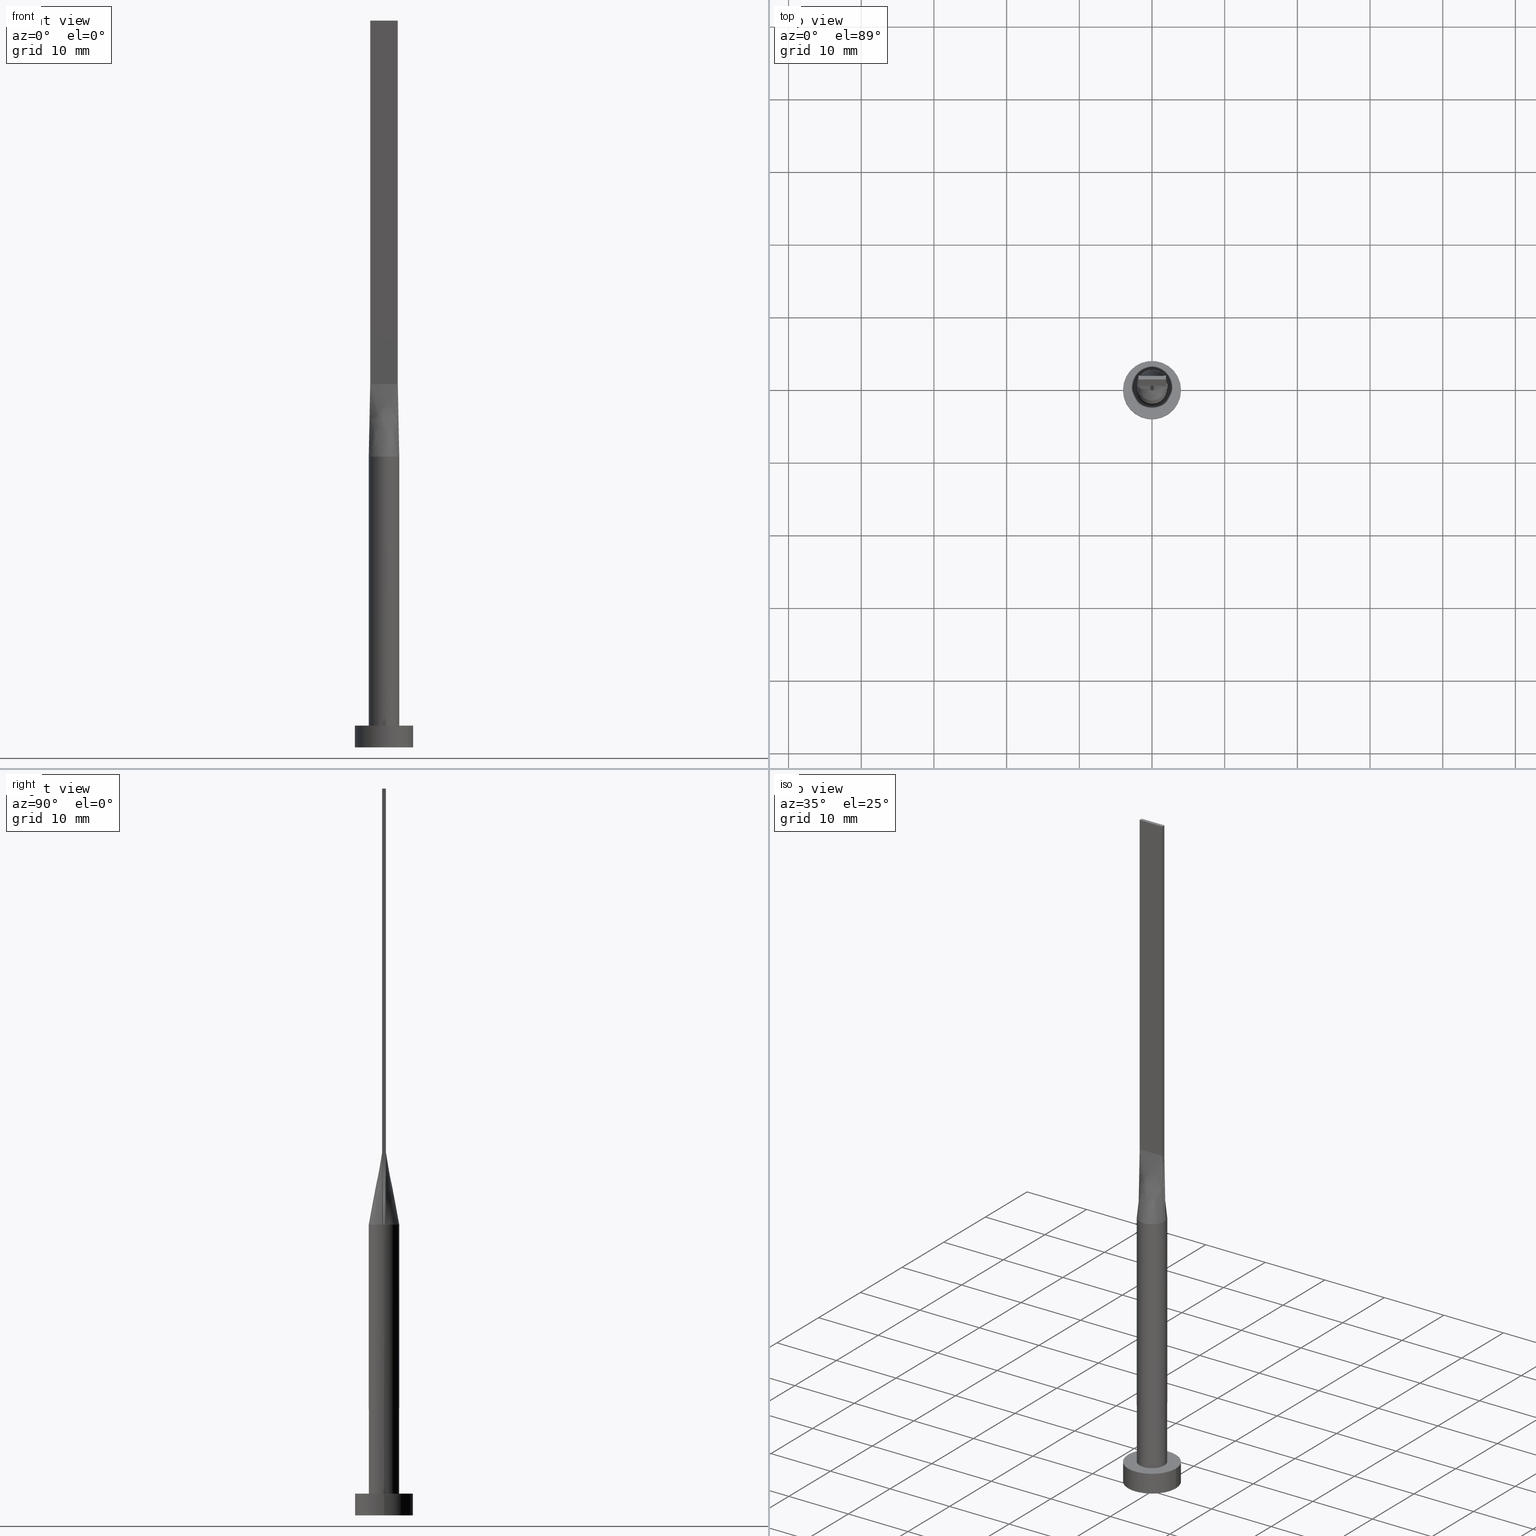
[diagram: canonical four-view strip — front | top / right | iso, engineering-drawing reading convention]
A machine part, canonical four-view strip (front | top / right | iso — engineering-drawing reading convention). The complete STEP part file that produces these views, byte-faithful:
ISO-10303-21;
HEADER;
FILE_DESCRIPTION (( 'STEP AP203' ),
    '1' );
FILE_NAME ('2c65.STEP',
    '2026-02-12T09:05:55',
    ( '' ),
    ( '' ),
    'SwSTEP 2.0',
    'SolidWorks 2019',
    '' );
FILE_SCHEMA (( 'CONFIG_CONTROL_DESIGN' ));
ENDSEC;

DATA;
#1 = VECTOR ( 'NONE', #40, 1000.000000000000000 ) ;
#2 = CIRCLE ( 'NONE', #413, 2.100000000000000089 ) ;
#3 = ORIENTED_EDGE ( 'NONE', *, *, #189, .T. ) ;
#4 = LINE ( 'NONE', #233, #424 ) ;
#5 = DIRECTION ( 'NONE',  ( -0.000000000000000000, -0.000000000000000000, -1.000000000000000000 ) ) ;
#6 = FACE_OUTER_BOUND ( 'NONE', #351, .T. ) ;
#7 = CARTESIAN_POINT ( 'NONE',  ( -1.899999999999999911, 0.2500000000000002220, 50.00000000000000000 ) ) ;
#8 = CARTESIAN_POINT ( 'NONE',  ( -1.843490440271193798, 1.028323931880310349, 39.99999999999999289 ) ) ;
#9 = VECTOR ( 'NONE', #188, 1000.000000000000000 ) ;
#10 = CARTESIAN_POINT ( 'NONE',  ( -1.108333333333334059, 0.2500000000000002220, 50.00000000000000000 ) ) ;
#11 = EDGE_LOOP ( 'NONE', ( #332, #119 ) ) ;
#12 = CARTESIAN_POINT ( 'NONE',  ( -0.3069641454662043190, 2.100000000000000533, 40.00000000000000000 ) ) ;
#13 = CARTESIAN_POINT ( 'NONE',  ( 2.059419575438525385, -0.4459762599261227201, 40.00000000000000711 ) ) ;
#14 = APPLICATION_CONTEXT ( 'configuration controlled 3d designs of mechanical parts and assemblies' ) ;
#15 = EDGE_CURVE ( 'NONE', #566, #476, #85, .T. ) ;
#16 = VERTEX_POINT ( 'NONE', #438 ) ;
#17 = CARTESIAN_POINT ( 'NONE',  ( -1.899999999999999911, 0.2500000000000002220, 100.0000000000000000 ) ) ;
#18 = CARTESIAN_POINT ( 'NONE',  ( 1.583333333333332149, 0.2500000000000002220, 50.00000000000000000 ) ) ;
#19 = VERTEX_POINT ( 'NONE', #36 ) ;
#20 = AXIS2_PLACEMENT_3D ( 'NONE', #557, #29, #160 ) ;
#21 = PLANE ( 'NONE',  #565 ) ;
#22 = DIRECTION ( 'NONE',  ( -1.000000000000000000, 0.000000000000000000, 0.000000000000000000 ) ) ;
#23 = VERTEX_POINT ( 'NONE', #221 ) ;
#24 = ADVANCED_FACE ( 'NONE', ( #365 ), #136, .F. ) ;
#25 = CARTESIAN_POINT ( 'NONE',  ( 0.000000000000000000, 0.000000000000000000, 3.000000000000000000 ) ) ;
#26 = ORIENTED_EDGE ( 'NONE', *, *, #473, .F. ) ;
#27 = PERSON_AND_ORGANIZATION_ROLE ( 'creator' ) ;
#28 = PRODUCT_RELATED_PRODUCT_CATEGORY ( 'detail', '', ( #111 ) ) ;
#29 = DIRECTION ( 'NONE',  ( 0.000000000000000000, 0.000000000000000000, 1.000000000000000000 ) ) ;
#30 = PERSON_AND_ORGANIZATION ( #382, #514 ) ;
#31 = CARTESIAN_POINT ( 'NONE',  ( 1.899999999999999911, 0.2500000000000002220, 100.0000000000000000 ) ) ;
#32 = VERTEX_POINT ( 'NONE', #407 ) ;
#33 = CARTESIAN_POINT ( 'NONE',  ( -0.6126365619873365143, -2.029890967560283865, 39.99999999999998579 ) ) ;
#34 = APPROVAL_ROLE ( '' ) ;
#35 = CARTESIAN_POINT ( 'NONE',  ( 0.000000000000000000, 0.000000000000000000, 3.000000000000000000 ) ) ;
#36 = CARTESIAN_POINT ( 'NONE',  ( 1.899999999999999911, 0.2500000000000002220, 100.0000000000000000 ) ) ;
#37 = APPROVAL_STATUS ( 'not_yet_approved' ) ;
#38 = CARTESIAN_POINT ( 'NONE',  ( -1.899999999999999911, -0.2499999999999995837, 100.0000000000000000 ) ) ;
#39 = VECTOR ( 'NONE', #480, 1000.000000000000000 ) ;
#40 = DIRECTION ( 'NONE',  ( -1.000000000000000000, -0.000000000000000000, -0.000000000000000000 ) ) ;
#41 = ADVANCED_FACE ( 'NONE', ( #6 ), #204, .T. ) ;
#42 = VERTEX_POINT ( 'NONE', #280 ) ;
#43 = CARTESIAN_POINT ( 'NONE',  ( 2.013179673790353341, 0.6348343983169372207, 39.99999999999999289 ) ) ;
#44 = CARTESIAN_POINT ( 'NONE',  ( 1.719140910005029443, -1.233222546295088984, 39.99999999999999289 ) ) ;
#45 = CARTESIAN_POINT ( 'NONE',  ( 1.899999999999999023, -0.2499999999999997780, 100.0000000000000000 ) ) ;
#46 = AXIS2_PLACEMENT_3D ( 'NONE', #542, #522, #22 ) ;
#47 = DIRECTION ( 'NONE',  ( 1.000000000000000000, 0.000000000000000000, -0.000000000000000000 ) ) ;
#48 = EDGE_CURVE ( 'NONE', #213, #293, #372, .T. ) ;
#49 = DIRECTION ( 'NONE',  ( 0.000000000000000000, -0.000000000000000000, -1.000000000000000000 ) ) ;
#50 = FACE_OUTER_BOUND ( 'NONE', #451, .T. ) ;
#51 = PLANE ( 'NONE',  #433 ) ;
#52 = CARTESIAN_POINT ( 'NONE',  ( -1.899999999999999911, -0.2499999999999995837, 50.00000000000000000 ) ) ;
#53 = CARTESIAN_POINT ( 'NONE',  ( -1.144666002056102361, 1.784802689656027619, 40.00000000000000000 ) ) ;
#54 = DIRECTION ( 'NONE',  ( -0.000000000000000000, 0.000000000000000000, -1.000000000000000000 ) ) ;
#55 =( GEOMETRIC_REPRESENTATION_CONTEXT ( 3 ) GLOBAL_UNCERTAINTY_ASSIGNED_CONTEXT ( ( #128 ) ) GLOBAL_UNIT_ASSIGNED_CONTEXT ( ( #559, #474, #561 ) ) REPRESENTATION_CONTEXT ( 'NONE', 'WORKASPACE' ) );
#56 = DIRECTION ( 'NONE',  ( 1.000000000000000000, 0.000000000000000000, 0.000000000000000000 ) ) ;
#57 = CARTESIAN_POINT ( 'NONE',  ( 0.000000000000000000, 0.000000000000000000, 40.00000000000000000 ) ) ;
#58 = VERTEX_POINT ( 'NONE', #513 ) ;
#59 = CARTESIAN_POINT ( 'NONE',  ( 0.000000000000000000, 0.000000000000000000, 3.000000000000000000 ) ) ;
#60 = ADVANCED_BREP_SHAPE_REPRESENTATION ( '2c65', ( #107, #214 ), #55 ) ;
#61 = ORIENTED_EDGE ( 'NONE', *, *, #208, .F. ) ;
#62 = FACE_OUTER_BOUND ( 'NONE', #334, .T. ) ;
#63 = CARTESIAN_POINT ( 'NONE',  ( 1.991027010319670776, -0.2619772381999571076, 45.00000000000000000 ) ) ;
#64 = DIRECTION ( 'NONE',  ( 0.000000000000000000, 0.000000000000000000, 1.000000000000000000 ) ) ;
#65 = ORIENTED_EDGE ( 'NONE', *, *, #239, .F. ) ;
#66 = CYLINDRICAL_SURFACE ( 'NONE', #403, 4.000000000000000000 ) ;
#67 = EDGE_CURVE ( 'NONE', #42, #441, #141, .T. ) ;
#68 = DIRECTION ( 'NONE',  ( 1.000000000000000000, 0.000000000000000000, 0.000000000000000000 ) ) ;
#69 = ORIENTED_EDGE ( 'NONE', *, *, #548, .F. ) ;
#70 = PERSON_AND_ORGANIZATION ( #382, #514 ) ;
#71 = ORIENTED_EDGE ( 'NONE', *, *, #277, .T. ) ;
#72 = ORIENTED_EDGE ( 'NONE', *, *, #239, .T. ) ;
#73 = AXIS2_PLACEMENT_3D ( 'NONE', #357, #225, #397 ) ;
#74 = LOCAL_TIME ( 10, 5, 55.00000000000000000, #487 ) ;
#75 = EDGE_CURVE ( 'NONE', #335, #207, #285, .T. ) ;
#76 = CC_DESIGN_DATE_AND_TIME_ASSIGNMENT ( #256, #389, ( #369 ) ) ;
#77 = CALENDAR_DATE ( 2026, 12, 2 ) ;
#78 = FACE_OUTER_BOUND ( 'NONE', #101, .T. ) ;
#79 = ORIENTED_EDGE ( 'NONE', *, *, #330, .F. ) ;
#80 = CARTESIAN_POINT ( 'NONE',  ( 2.093966886534508909, 0.1834166955966461954, 40.00000000000000000 ) ) ;
#81 = EDGE_CURVE ( 'NONE', #32, #213, #419, .T. ) ;
#82 = EDGE_LOOP ( 'NONE', ( #72, #86, #418, #311, #167 ) ) ;
#83 = LINE ( 'NONE', #453, #114 ) ;
#84 = AXIS2_PLACEMENT_3D ( 'NONE', #363, #316, #540 ) ;
#85 = LINE ( 'NONE', #303, #574 ) ;
#86 = ORIENTED_EDGE ( 'NONE', *, *, #122, .T. ) ;
#87 = CARTESIAN_POINT ( 'NONE',  ( -2.082216547150284924, -0.2739753355370637133, 40.00000000000000000 ) ) ;
#88 = CARTESIAN_POINT ( 'NONE',  ( 1.899999999999999023, -0.2499999999999997780, 100.0000000000000000 ) ) ;
#89 = CARTESIAN_POINT ( 'NONE',  ( 0.000000000000000000, 0.000000000000000000, 0.000000000000000000 ) ) ;
#90 = LINE ( 'NONE', #469, #171 ) ;
#91 = PLANE ( 'NONE',  #504 ) ;
#92 = CARTESIAN_POINT ( 'NONE',  ( -0.6333333333333343029, 0.2500000000000002220, 50.00000000000000000 ) ) ;
#93 = CARTESIAN_POINT ( 'NONE',  ( -2.093966886534509353, 0.1834166955966458346, 40.00000000000000000 ) ) ;
#94 = CYLINDRICAL_SURFACE ( 'NONE', #46, 4.000000000000000000 ) ;
#95 = CARTESIAN_POINT ( 'NONE',  ( -2.082054020639342529, -0.2739544763999126609, 40.00000000000000000 ) ) ;
#96 = CARTESIAN_POINT ( 'NONE',  ( 1.144666002056102583, 1.784802689656027397, 40.00000000000000000 ) ) ;
#97 = CARTESIAN_POINT ( 'NONE',  ( 0.000000000000000000, 0.000000000000000000, 3.000000000000000000 ) ) ;
#98 = CARTESIAN_POINT ( 'NONE',  ( 1.899999999999999023, 0.2500000000000002220, 50.00000000000000000 ) ) ;
#99 = VECTOR ( 'NONE', #404, 1000.000000000000000 ) ;
#100 = CIRCLE ( 'NONE', #240, 2.100000000000000089 ) ;
#101 = EDGE_LOOP ( 'NONE', ( #414, #430, #313, #288 ) ) ;
#102 = CARTESIAN_POINT ( 'NONE',  ( -1.266666666666667274, 0.2500000000000002220, 50.00000000000000000 ) ) ;
#103 = CARTESIAN_POINT ( 'NONE',  ( 2.082054020639342085, -0.2739544763999143262, 40.00000000000000000 ) ) ;
#104 = ORIENTED_EDGE ( 'NONE', *, *, #355, .T. ) ;
#105 = B_SPLINE_SURFACE_WITH_KNOTS ( 'NONE', 3, 1, ( 
 ( #375, #552 ),
 ( #148, #326 ),
 ( #287, #129 ),
 ( #356, #535 ),
 ( #223, #307 ),
 ( #533, #132 ),
 ( #575, #177 ),
 ( #33, #218 ),
 ( #395, #391 ),
 ( #570, #168 ),
 ( #345, #174 ),
 ( #125, #180 ),
 ( #310, #269 ),
 ( #44, #358 ),
 ( #271, #447 ),
 ( #450, #417 ),
 ( #13, #147 ),
 ( #103, #421 ) ),
 .UNSPECIFIED., .F., .F., .F.,
 ( 4, 2, 2, 2, 2, 2, 2, 2, 4 ),
 ( 2, 2 ),
 ( 0.000000000000000000, 0.1249999999999999722, 0.2500000000000000000, 0.3750000000000000000, 0.5000000000000000000, 0.6250000000000001110, 0.7500000000000000000, 0.8750000000000000000, 1.000000000000000000 ),
 ( 0.000000000000000000, 1.000000000000000000 ),
 .UNSPECIFIED. ) ;
#106 = FACE_OUTER_BOUND ( 'NONE', #479, .T. ) ;
#107 = MANIFOLD_SOLID_BREP ( 'P�idat vysunut�m5', #538 ) ;
#108 = ORIENTED_EDGE ( 'NONE', *, *, #122, .F. ) ;
#109 = ORIENTED_EDGE ( 'NONE', *, *, #530, .F. ) ;
#110 = CARTESIAN_POINT ( 'NONE',  ( 2.100000000000000089, 2.571758278209441957E-16, 40.00000000000000000 ) ) ;
#111 = PRODUCT ( '2c65', '2c65', '', ( #166 ) ) ;
#112 = LINE ( 'NONE', #459, #99 ) ;
#113 = ORIENTED_EDGE ( 'NONE', *, *, #562, .F. ) ;
#114 = VECTOR ( 'NONE', #500, 1000.000000000000000 ) ;
#115 = APPROVAL_PERSON_ORGANIZATION ( #30, #200, #34 ) ;
#116 = LINE ( 'NONE', #63, #425 ) ;
#117 = CARTESIAN_POINT ( 'NONE',  ( -1.899999999999999911, -0.2499999999999995837, 100.0000000000000000 ) ) ;
#118 = FACE_OUTER_BOUND ( 'NONE', #11, .T. ) ;
#119 = ORIENTED_EDGE ( 'NONE', *, *, #473, .T. ) ;
#120 = DATE_TIME_ROLE ( 'classification_date' ) ;
#121 = DIRECTION ( 'NONE',  ( 1.000000000000000000, -2.131628207280300558E-14, 0.000000000000000000 ) ) ;
#122 = EDGE_CURVE ( 'NONE', #308, #576, #231, .T. ) ;
#123 = VECTOR ( 'NONE', #502, 1000.000000000000000 ) ;
#124 = LOCAL_TIME ( 10, 5, 55.00000000000000000, #169 ) ;
#125 = CARTESIAN_POINT ( 'NONE',  ( 1.144666002056101028, -1.784802689656028507, 40.00000000000000000 ) ) ;
#126 = COORDINATED_UNIVERSAL_TIME_OFFSET ( 1, 0, .AHEAD. ) ;
#127 = CARTESIAN_POINT ( 'NONE',  ( 2.082200219287980492, 0.2739732417105839035, 40.00000000000000000 ) ) ;
#128 = UNCERTAINTY_MEASURE_WITH_UNIT (LENGTH_MEASURE( 1.000000000000000082E-05 ), #559, 'distance_accuracy_value', 'NONE');
#129 = CARTESIAN_POINT ( 'NONE',  ( -1.583333333333335258, -0.2499999999999995837, 50.00000000000000000 ) ) ;
#130 = EDGE_LOOP ( 'NONE', ( #69, #65, #206, #226, #3, #563 ) ) ;
#131 = CARTESIAN_POINT ( 'NONE',  ( 4.000000000000000000, 4.898587196589412829E-16, 0.000000000000000000 ) ) ;
#132 = CARTESIAN_POINT ( 'NONE',  ( -0.7916666666666716257, -0.2499999999999995837, 50.00000000000000000 ) ) ;
#133 = CC_DESIGN_PERSON_AND_ORGANIZATION_ASSIGNMENT ( #429, #392, ( #224 ) ) ;
#134 = CARTESIAN_POINT ( 'NONE',  ( 1.899999999999999911, 0.2500000000000002220, 100.0000000000000000 ) ) ;
#135 = LINE ( 'NONE', #229, #238 ) ;
#136 = PLANE ( 'NONE',  #205 ) ;
#137 = ORIENTED_EDGE ( 'NONE', *, *, #81, .T. ) ;
#138 = DIRECTION ( 'NONE',  ( -1.000000000000000000, 1.734723475976807094E-15, 0.000000000000000000 ) ) ;
#139 = EDGE_CURVE ( 'NONE', #476, #467, #400, .T. ) ;
#140 = CARTESIAN_POINT ( 'NONE',  ( 1.719140910005030110, 1.233222546295088762, 39.99999999999999289 ) ) ;
#141 = CIRCLE ( 'NONE', #360, 4.000000000000000000 ) ;
#142 = CARTESIAN_POINT ( 'NONE',  ( -2.099923319482092765, -0.09170834779832252870, 40.00000000000000000 ) ) ;
#143 = CARTESIAN_POINT ( 'NONE',  ( -2.059419575438525385, 0.4459762599261216653, 40.00000000000000711 ) ) ;
#144 = ADVANCED_FACE ( 'NONE', ( #580 ), #183, .T. ) ;
#145 = CARTESIAN_POINT ( 'NONE',  ( 2.082216499796571085, -0.2739752411676472654, 40.00000000000000000 ) ) ;
#146 = CARTESIAN_POINT ( 'NONE',  ( -1.899999999999999911, 0.2500000000000002220, 50.00000000000000000 ) ) ;
#147 = CARTESIAN_POINT ( 'NONE',  ( 1.741666666666664698, -0.2499999999999997780, 50.00000000000000000 ) ) ;
#148 = CARTESIAN_POINT ( 'NONE',  ( -2.059419575438525385, -0.4459762599261209992, 40.00000000000000000 ) ) ;
#149 = CC_DESIGN_PERSON_AND_ORGANIZATION_ASSIGNMENT ( #162, #432, ( #224 ) ) ;
#150 = CARTESIAN_POINT ( 'NONE',  ( -2.013179673790353341, 0.6348343983169374427, 39.99999999999998579 ) ) ;
#151 = AXIS2_PLACEMENT_3D ( 'NONE', #537, #577, #179 ) ;
#152 = SECURITY_CLASSIFICATION ( '', '', #571 ) ;
#153 = EDGE_LOOP ( 'NONE', ( #104, #263, #579, #427 ) ) ;
#154 = CARTESIAN_POINT ( 'NONE',  ( 0.6126365619873356261, 2.029890967560284754, 40.00000000000000000 ) ) ;
#155 = ORIENTED_EDGE ( 'NONE', *, *, #48, .F. ) ;
#156 = EDGE_CURVE ( 'NONE', #576, #23, #4, .T. ) ;
#157 = ORIENTED_EDGE ( 'NONE', *, *, #189, .F. ) ;
#158 = DIRECTION ( 'NONE',  ( -0.000000000000000000, -0.000000000000000000, -1.000000000000000000 ) ) ;
#159 = PERSON_AND_ORGANIZATION_ROLE ( 'classification_officer' ) ;
#160 = DIRECTION ( 'NONE',  ( 1.000000000000000000, 0.000000000000000000, 0.000000000000000000 ) ) ;
#161 = VECTOR ( 'NONE', #437, 1000.000000000000000 ) ;
#162 = PERSON_AND_ORGANIZATION ( #382, #514 ) ;
#163 = CARTESIAN_POINT ( 'NONE',  ( 0.000000000000000000, 0.000000000000000000, 40.00000000000000000 ) ) ;
#164 = ORIENTED_EDGE ( 'NONE', *, *, #75, .T. ) ;
#165 = EDGE_CURVE ( 'NONE', #213, #467, #191, .T. ) ;
#166 = MECHANICAL_CONTEXT ( 'NONE', #14, 'mechanical' ) ;
#167 = ORIENTED_EDGE ( 'NONE', *, *, #555, .F. ) ;
#168 = CARTESIAN_POINT ( 'NONE',  ( 0.1583333333333272475, -0.2499999999999996669, 50.00000000000000000 ) ) ;
#169 = COORDINATED_UNIVERSAL_TIME_OFFSET ( 1, 0, .AHEAD. ) ;
#170 = DIRECTION ( 'NONE',  ( -1.000000000000000000, 0.000000000000000000, 0.000000000000000000 ) ) ;
#171 = VECTOR ( 'NONE', #549, 1000.000000000000114 ) ;
#172 = ORIENTED_EDGE ( 'NONE', *, *, #139, .T. ) ;
#173 = APPROVAL_PERSON_ORGANIZATION ( #436, #385, #299 ) ;
#174 = CARTESIAN_POINT ( 'NONE',  ( 0.3166666666666607677, -0.2499999999999996669, 50.00000000000000000 ) ) ;
#175 = CALENDAR_DATE ( 2026, 12, 2 ) ;
#176 = ADVANCED_FACE ( 'NONE', ( #186 ), #94, .T. ) ;
#177 = CARTESIAN_POINT ( 'NONE',  ( -0.6333333333333387438, -0.2499999999999995837, 50.00000000000000000 ) ) ;
#178 = ORIENTED_EDGE ( 'NONE', *, *, #81, .F. ) ;
#179 = DIRECTION ( 'NONE',  ( 1.000000000000000000, 0.000000000000000000, 0.000000000000000000 ) ) ;
#180 = CARTESIAN_POINT ( 'NONE',  ( 0.6333333333333278636, -0.2499999999999996669, 50.00000000000000000 ) ) ;
#181 = PLANE ( 'NONE',  #348 ) ;
#182 = ORIENTED_EDGE ( 'NONE', *, *, #15, .T. ) ;
#183 = CYLINDRICAL_SURFACE ( 'NONE', #84, 2.100000000000000089 ) ;
#184 = VECTOR ( 'NONE', #261, 1000.000000000000000 ) ;
#185 = CARTESIAN_POINT ( 'NONE',  ( 2.093966886534508909, -0.1834166955966466950, 40.00000000000000000 ) ) ;
#186 = FACE_OUTER_BOUND ( 'NONE', #493, .T. ) ;
#187 = EDGE_CURVE ( 'NONE', #441, #440, #112, .T. ) ;
#188 = DIRECTION ( 'NONE',  ( 0.000000000000000000, -1.000000000000000000, 0.000000000000000000 ) ) ;
#189 = EDGE_CURVE ( 'NONE', #16, #380, #323, .T. ) ;
#190 = CARTESIAN_POINT ( 'NONE',  ( 2.082054020639342085, -0.2739544763999143262, 40.00000000000000000 ) ) ;
#191 = LINE ( 'NONE', #367, #275 ) ;
#192 = PLANE ( 'NONE',  #319 ) ;
#193 = CARTESIAN_POINT ( 'NONE',  ( -2.099923319482092765, 0.09170834779832304218, 40.00000000000000000 ) ) ;
#194 = CARTESIAN_POINT ( 'NONE',  ( 0.1583333333333320492, 0.2500000000000002220, 50.00000000000000711 ) ) ;
#195 = VECTOR ( 'NONE', #544, 1000.000000000000000 ) ;
#196 = EDGE_CURVE ( 'NONE', #467, #335, #90, .T. ) ;
#197 = CARTESIAN_POINT ( 'NONE',  ( -1.899999999999999911, 0.2500000000000002220, 100.0000000000000000 ) ) ;
#198 = CARTESIAN_POINT ( 'NONE',  ( 1.741666666666665586, 0.2500000000000002220, 50.00000000000000000 ) ) ;
#199 = FACE_OUTER_BOUND ( 'NONE', #386, .T. ) ;
#200 = APPROVAL ( #396, 'NEUR�EN�' ) ;
#201 = EDGE_LOOP ( 'NONE', ( #470, #523, #79, #376 ) ) ;
#202 = CARTESIAN_POINT ( 'NONE',  ( -1.583333333333333703, 0.2500000000000002220, 50.00000000000000000 ) ) ;
#203 = CARTESIAN_POINT ( 'NONE',  ( 1.266666666666665497, 0.2500000000000002220, 50.00000000000000000 ) ) ;
#204 = B_SPLINE_SURFACE_WITH_KNOTS ( 'NONE', 3, 1, ( 
 ( #235, #545 ),
 ( #93, #516 ),
 ( #193, #546 ),
 ( #142, #321 ),
 ( #508, #462 ),
 ( #95, #52 ) ),
 .UNSPECIFIED., .F., .F., .F.,
 ( 4, 2, 4 ),
 ( 2, 2 ),
 ( 0.000000000000000000, 0.5000000000000000000, 1.000000000000000000 ),
 ( 0.000000000000000000, 1.000000000000000000 ),
 .UNSPECIFIED. ) ;
#205 = AXIS2_PLACEMENT_3D ( 'NONE', #89, #454, #47 ) ;
#206 = ORIENTED_EDGE ( 'NONE', *, *, #75, .F. ) ;
#207 = VERTEX_POINT ( 'NONE', #145 ) ;
#208 = EDGE_CURVE ( 'NONE', #293, #212, #488, .T. ) ;
#209 = CARTESIAN_POINT ( 'NONE',  ( 0.000000000000000000, 0.000000000000000000, 100.0000000000000000 ) ) ;
#210 = ORIENTED_EDGE ( 'NONE', *, *, #548, .T. ) ;
#211 = CALENDAR_DATE ( 2026, 12, 2 ) ;
#212 = VERTEX_POINT ( 'NONE', #387 ) ;
#213 = VERTEX_POINT ( 'NONE', #117 ) ;
#214 = AXIS2_PLACEMENT_3D ( 'NONE', #483, #64, #68 ) ;
#215 = DESIGN_CONTEXT ( 'detailed design', #359, 'design' ) ;
#216 = CALENDAR_DATE ( 2026, 12, 2 ) ;
#217 = CC_DESIGN_PERSON_AND_ORGANIZATION_ASSIGNMENT ( #384, #481, ( #111 ) ) ;
#218 = CARTESIAN_POINT ( 'NONE',  ( -0.3166666666666726471, -0.2499999999999995837, 50.00000000000000000 ) ) ;
#219 = APPROVAL_DATE_TIME ( #346, #200 ) ;
#220 = DIRECTION ( 'NONE',  ( -0.01820233363815273661, 0.002395043899757038752, 0.9998314552037476099 ) ) ;
#221 = CARTESIAN_POINT ( 'NONE',  ( 1.899999999999999911, 0.2500000000000002220, 50.00000000000000000 ) ) ;
#222 = COORDINATED_UNIVERSAL_TIME_OFFSET ( 1, 0, .AHEAD. ) ;
#223 = CARTESIAN_POINT ( 'NONE',  ( -1.719140910005030998, -1.233222546295087652, 39.99999999999998579 ) ) ;
#224 = PRODUCT_DEFINITION_FORMATION_WITH_SPECIFIED_SOURCE ( 'LIBOVOLN�', '', #111, .NOT_KNOWN. ) ;
#225 = DIRECTION ( 'NONE',  ( 0.000000000000000000, 0.000000000000000000, 1.000000000000000000 ) ) ;
#226 = ORIENTED_EDGE ( 'NONE', *, *, #435, .F. ) ;
#227 = DIRECTION ( 'NONE',  ( -0.000000000000000000, 1.000000000000000000, -0.000000000000000000 ) ) ;
#228 = ORIENTED_EDGE ( 'NONE', *, *, #165, .F. ) ;
#229 = CARTESIAN_POINT ( 'NONE',  ( -4.000000000000000000, 0.000000000000000000, 3.000000000000000000 ) ) ;
#230 = EDGE_CURVE ( 'NONE', #32, #476, #300, .T. ) ;
#231 = CIRCLE ( 'NONE', #302, 2.100000000000000089 ) ;
#232 = CARTESIAN_POINT ( 'NONE',  ( 1.899999999999999911, 0.2500000000000002220, 50.00000000000000000 ) ) ;
#233 = CARTESIAN_POINT ( 'NONE',  ( 1.991027010319671220, 0.2619772381999570521, 45.00000000000000000 ) ) ;
#234 = CARTESIAN_POINT ( 'NONE',  ( 1.899999999999999023, -0.2499999999999997780, 100.0000000000000000 ) ) ;
#235 = CARTESIAN_POINT ( 'NONE',  ( -2.082054020639342529, 0.2739544763999132160, 40.00000000000000000 ) ) ;
#236 = CARTESIAN_POINT ( 'NONE',  ( -1.719140910005030554, 1.233222546295088762, 40.00000000000000000 ) ) ;
#237 = CARTESIAN_POINT ( 'NONE',  ( -2.059419575438525385, 0.4459762599261216653, 40.00000000000000711 ) ) ;
#238 = VECTOR ( 'NONE', #5, 1000.000000000000000 ) ;
#239 = EDGE_CURVE ( 'NONE', #207, #308, #564, .T. ) ;
#240 = AXIS2_PLACEMENT_3D ( 'NONE', #572, #477, #251 ) ;
#241 = CARTESIAN_POINT ( 'NONE',  ( 0.000000000000000000, 0.000000000000000000, 40.00000000000000000 ) ) ;
#242 = DIRECTION ( 'NONE',  ( -0.000000000000000000, -0.000000000000000000, -1.000000000000000000 ) ) ;
#243 = CARTESIAN_POINT ( 'NONE',  ( 1.144666002056102583, 1.784802689656027397, 40.00000000000000000 ) ) ;
#244 = EDGE_CURVE ( 'NONE', #19, #23, #301, .T. ) ;
#245 = CARTESIAN_POINT ( 'NONE',  ( -2.013179673790353341, 0.6348343983169374427, 39.99999999999998579 ) ) ;
#246 = B_SPLINE_SURFACE_WITH_KNOTS ( 'NONE', 3, 1, ( 
 ( #420, #98 ),
 ( #373, #198 ),
 ( #457, #18 ),
 ( #423, #203 ),
 ( #325, #379 ),
 ( #278, #556 ),
 ( #96, #377 ),
 ( #154, #292 ),
 ( #322, #194 ),
 ( #416, #284 ),
 ( #320, #463 ),
 ( #331, #92 ),
 ( #371, #553 ),
 ( #236, #10 ),
 ( #328, #102 ),
 ( #150, #202 ),
 ( #143, #410 ),
 ( #515, #466 ) ),
 .UNSPECIFIED., .F., .F., .F.,
 ( 4, 2, 2, 2, 2, 2, 2, 2, 4 ),
 ( 2, 2 ),
 ( 0.000000000000000000, 0.1250000000000000000, 0.2500000000000000000, 0.3750000000000000000, 0.5000000000000000000, 0.6250000000000000000, 0.7500000000000000000, 0.8750000000000000000, 1.000000000000000000 ),
 ( 0.000000000000000000, 1.000000000000000000 ),
 .UNSPECIFIED. ) ;
#247 = AXIS2_PLACEMENT_3D ( 'NONE', #59, #412, #517 ) ;
#248 = ORIENTED_EDGE ( 'NONE', *, *, #422, .T. ) ;
#249 = ORIENTED_EDGE ( 'NONE', *, *, #507, .T. ) ;
#250 = ORIENTED_EDGE ( 'NONE', *, *, #355, .F. ) ;
#251 = DIRECTION ( 'NONE',  ( 1.000000000000000000, 0.000000000000000000, 0.000000000000000000 ) ) ;
#252 = ADVANCED_FACE ( 'NONE', ( #458 ), #51, .F. ) ;
#253 = APPLICATION_PROTOCOL_DEFINITION ( 'international standard', 'config_control_design', 1994, #359 ) ;
#254 = CARTESIAN_POINT ( 'NONE',  ( -1.899999999999999911, 0.2500000000000002220, 100.0000000000000000 ) ) ;
#255 = ORIENTED_EDGE ( 'NONE', *, *, #196, .F. ) ;
#256 = DATE_AND_TIME ( #216, #74 ) ;
#257 = AXIS2_PLACEMENT_3D ( 'NONE', #25, #314, #581 ) ;
#258 = LOCAL_TIME ( 10, 5, 55.00000000000000000, #222 ) ;
#259 = PERSON_AND_ORGANIZATION ( #382, #514 ) ;
#260 = CALENDAR_DATE ( 2026, 12, 2 ) ;
#261 = DIRECTION ( 'NONE',  ( -0.000000000000000000, -0.000000000000000000, -1.000000000000000000 ) ) ;
#262 = APPROVAL ( #37, 'NEUR�EN�' ) ;
#263 = ORIENTED_EDGE ( 'NONE', *, *, #230, .F. ) ;
#264 = ADVANCED_FACE ( 'NONE', ( #199 ), #105, .T. ) ;
#265 = FACE_OUTER_BOUND ( 'NONE', #153, .T. ) ;
#266 = CIRCLE ( 'NONE', #247, 4.000000000000000000 ) ;
#267 = ORIENTED_EDGE ( 'NONE', *, *, #434, .F. ) ;
#268 = CARTESIAN_POINT ( 'NONE',  ( 2.082200219287980492, 0.2739732417105839035, 40.00000000000000000 ) ) ;
#269 = CARTESIAN_POINT ( 'NONE',  ( 0.7916666666666614116, -0.2499999999999996669, 50.00000000000000000 ) ) ;
#270 = DIRECTION ( 'NONE',  ( -1.000000000000000000, 5.706327223607920020E-17, 0.000000000000000000 ) ) ;
#271 = CARTESIAN_POINT ( 'NONE',  ( 1.843490440271193354, -1.028323931880311459, 39.99999999999999289 ) ) ;
#272 = CARTESIAN_POINT ( 'NONE',  ( 0.000000000000000000, 0.000000000000000000, 40.00000000000000000 ) ) ;
#273 = DIRECTION ( 'NONE',  ( -1.734723475976807094E-15, -1.000000000000000000, 0.000000000000000000 ) ) ;
#274 = DIRECTION ( 'NONE',  ( 0.000000000000000000, 0.000000000000000000, 1.000000000000000000 ) ) ;
#275 = VECTOR ( 'NONE', #318, 1000.000000000000000 ) ;
#276 = CARTESIAN_POINT ( 'NONE',  ( 1.899999999999999911, 0.2500000000000002220, 100.0000000000000000 ) ) ;
#277 = EDGE_CURVE ( 'NONE', #440, #58, #370, .T. ) ;
#278 = CARTESIAN_POINT ( 'NONE',  ( 1.370324685961209044, 1.611984358543462781, 39.99999999999998579 ) ) ;
#279 = DIRECTION ( 'NONE',  ( -0.000000000000000000, -0.000000000000000000, -1.000000000000000000 ) ) ;
#280 = CARTESIAN_POINT ( 'NONE',  ( -4.000000000000000000, 0.000000000000000000, 3.000000000000000000 ) ) ;
#281 = CC_DESIGN_DATE_AND_TIME_ASSIGNMENT ( #339, #120, ( #152 ) ) ;
#282 = CARTESIAN_POINT ( 'NONE',  ( 1.370324685961209044, 1.611984358543462781, 39.99999999999998579 ) ) ;
#283 = DIRECTION ( 'NONE',  ( 0.000000000000000000, 0.000000000000000000, 1.000000000000000000 ) ) ;
#284 = CARTESIAN_POINT ( 'NONE',  ( -0.1583333333333345472, 0.2500000000000002220, 50.00000000000000711 ) ) ;
#285 = CIRCLE ( 'NONE', #402, 2.100000000000000089 ) ;
#286 = CC_DESIGN_APPROVAL ( #200, ( #224 ) ) ;
#287 = CARTESIAN_POINT ( 'NONE',  ( -2.013179673790353341, -0.6348343983169372207, 40.00000000000000000 ) ) ;
#288 = ORIENTED_EDGE ( 'NONE', *, *, #530, .T. ) ;
#289 = CARTESIAN_POINT ( 'NONE',  ( -1.719140910005030554, 1.233222546295088762, 40.00000000000000000 ) ) ;
#290 = ADVANCED_FACE ( 'NONE', ( #527, #118 ), #560, .T. ) ;
#291 = EDGE_CURVE ( 'NONE', #467, #212, #83, .T. ) ;
#292 = CARTESIAN_POINT ( 'NONE',  ( 0.3166666666666653751, 0.2500000000000002220, 50.00000000000000711 ) ) ;
#293 = VERTEX_POINT ( 'NONE', #234 ) ;
#294 = CARTESIAN_POINT ( 'NONE',  ( 0.000000000000000000, 0.000000000000000000, 3.000000000000000000 ) ) ;
#295 = VECTOR ( 'NONE', #324, 1000.000000000000000 ) ;
#296 = ORIENTED_EDGE ( 'NONE', *, *, #291, .T. ) ;
#297 = EDGE_CURVE ( 'NONE', #42, #58, #135, .T. ) ;
#298 = DIRECTION ( 'NONE',  ( 1.000000000000000000, 0.000000000000000000, 0.000000000000000000 ) ) ;
#299 = APPROVAL_ROLE ( '' ) ;
#300 = LINE ( 'NONE', #254, #411 ) ;
#301 = LINE ( 'NONE', #31, #455 ) ;
#302 = AXIS2_PLACEMENT_3D ( 'NONE', #272, #274, #452 ) ;
#303 = CARTESIAN_POINT ( 'NONE',  ( -1.991027010319671220, 0.2619772381999564970, 45.00000000000000000 ) ) ;
#304 = APPLICATION_PROTOCOL_DEFINITION ( 'international standard', 'config_control_design', 1994, #14 ) ;
#305 = ADVANCED_FACE ( 'NONE', ( #445 ), #181, .F. ) ;
#306 = CARTESIAN_POINT ( 'NONE',  ( 2.099961659741046649, 5.289748680732500402E-16, 40.00000000000000000 ) ) ;
#307 = CARTESIAN_POINT ( 'NONE',  ( -1.108333333333337167, -0.2499999999999995837, 50.00000000000000000 ) ) ;
#308 = VERTEX_POINT ( 'NONE', #306 ) ;
#309 = CARTESIAN_POINT ( 'NONE',  ( 1.899999999999999689, 0.1666666666666667407, 50.00000000000000000 ) ) ;
#310 = CARTESIAN_POINT ( 'NONE',  ( 1.370324685961208599, -1.611984358543463447, 39.99999999999999289 ) ) ;
#311 = ORIENTED_EDGE ( 'NONE', *, *, #327, .F. ) ;
#312 = CARTESIAN_POINT ( 'NONE',  ( 4.000000000000000000, 4.898587196589412829E-16, 3.000000000000000000 ) ) ;
#313 = ORIENTED_EDGE ( 'NONE', *, *, #297, .T. ) ;
#314 = DIRECTION ( 'NONE',  ( 0.000000000000000000, 0.000000000000000000, 1.000000000000000000 ) ) ;
#315 = CARTESIAN_POINT ( 'NONE',  ( -2.100000000000000089, 0.000000000000000000, 40.00000000000000000 ) ) ;
#316 = DIRECTION ( 'NONE',  ( -0.000000000000000000, -0.000000000000000000, -1.000000000000000000 ) ) ;
#317 = CARTESIAN_POINT ( 'NONE',  ( 1.899999999999999911, 0.2500000000000002220, 50.00000000000000000 ) ) ;
#318 = DIRECTION ( 'NONE',  ( -0.000000000000000000, -0.000000000000000000, -1.000000000000000000 ) ) ;
#319 = AXIS2_PLACEMENT_3D ( 'NONE', #38, #368, #270 ) ;
#320 = CARTESIAN_POINT ( 'NONE',  ( -0.6126365619873356261, 2.029890967560284754, 40.00000000000000000 ) ) ;
#321 = CARTESIAN_POINT ( 'NONE',  ( -1.899999999999999689, -0.08333333333333317605, 50.00000000000000000 ) ) ;
#322 = CARTESIAN_POINT ( 'NONE',  ( 0.3069641454662044300, 2.100000000000000089, 40.00000000000000000 ) ) ;
#323 = LINE ( 'NONE', #315, #123 ) ;
#324 = DIRECTION ( 'NONE',  ( 1.000000000000000000, -5.706327223607920020E-17, 0.000000000000000000 ) ) ;
#325 = CARTESIAN_POINT ( 'NONE',  ( 1.719140910005030110, 1.233222546295088762, 39.99999999999999289 ) ) ;
#326 = CARTESIAN_POINT ( 'NONE',  ( -1.741666666666667584, -0.2499999999999995837, 50.00000000000000000 ) ) ;
#327 = EDGE_CURVE ( 'NONE', #212, #23, #364, .T. ) ;
#328 = CARTESIAN_POINT ( 'NONE',  ( -1.843490440271193798, 1.028323931880310349, 39.99999999999999289 ) ) ;
#329 = CIRCLE ( 'NONE', #73, 2.100000000000000089 ) ;
#330 = EDGE_CURVE ( 'NONE', #293, #19, #406, .T. ) ;
#331 = CARTESIAN_POINT ( 'NONE',  ( -1.144666002056102361, 1.784802689656027619, 40.00000000000000000 ) ) ;
#332 = ORIENTED_EDGE ( 'NONE', *, *, #67, .T. ) ;
#333 = CARTESIAN_POINT ( 'NONE',  ( 2.100000000000000089, 2.571758278209441957E-16, 3.000000000000000000 ) ) ;
#334 = EDGE_LOOP ( 'NONE', ( #248, #137, #448, #528 ) ) ;
#335 = VERTEX_POINT ( 'NONE', #87 ) ;
#336 = DIRECTION ( 'NONE',  ( 0.000000000000000000, 0.000000000000000000, 1.000000000000000000 ) ) ;
#337 = CARTESIAN_POINT ( 'NONE',  ( 1.899999999999999023, -0.2499999999999997780, 100.0000000000000000 ) ) ;
#338 = ORIENTED_EDGE ( 'NONE', *, *, #297, .F. ) ;
#339 = DATE_AND_TIME ( #260, #124 ) ;
#340 = DIRECTION ( 'NONE',  ( 0.000000000000000000, 0.000000000000000000, 1.000000000000000000 ) ) ;
#341 = ORIENTED_EDGE ( 'NONE', *, *, #460, .T. ) ;
#342 = APPROVAL_DATE_TIME ( #478, #385 ) ;
#343 = DIRECTION ( 'NONE',  ( -0.000000000000000000, -0.000000000000000000, -1.000000000000000000 ) ) ;
#344 = ADVANCED_FACE ( 'NONE', ( #354 ), #472, .T. ) ;
#345 = CARTESIAN_POINT ( 'NONE',  ( 0.6126365619873340718, -2.029890967560283865, 39.99999999999998579 ) ) ;
#346 = DATE_AND_TIME ( #77, #258 ) ;
#347 = ADVANCED_FACE ( 'NONE', ( #265 ), #91, .F. ) ;
#348 = AXIS2_PLACEMENT_3D ( 'NONE', #88, #138, #273 ) ;
#349 = CC_DESIGN_APPROVAL ( #262, ( #152 ) ) ;
#350 = DIRECTION ( 'NONE',  ( 0.000000000000000000, 0.000000000000000000, 1.000000000000000000 ) ) ;
#351 = EDGE_LOOP ( 'NONE', ( #362, #464, #255, #353, #568 ) ) ;
#352 = DATE_AND_TIME ( #175, #505 ) ;
#353 = ORIENTED_EDGE ( 'NONE', *, *, #139, .F. ) ;
#354 = FACE_OUTER_BOUND ( 'NONE', #82, .T. ) ;
#355 = EDGE_CURVE ( 'NONE', #23, #476, #541, .T. ) ;
#356 = CARTESIAN_POINT ( 'NONE',  ( -1.843490440271193354, -1.028323931880309461, 39.99999999999997868 ) ) ;
#357 = CARTESIAN_POINT ( 'NONE',  ( 0.000000000000000000, 0.000000000000000000, 40.00000000000000000 ) ) ;
#358 = CARTESIAN_POINT ( 'NONE',  ( 1.108333333333328730, -0.2499999999999996669, 50.00000000000000000 ) ) ;
#359 = APPLICATION_CONTEXT ( 'configuration controlled 3d designs of mechanical parts and assemblies' ) ;
#360 = AXIS2_PLACEMENT_3D ( 'NONE', #97, #283, #56 ) ;
#361 = CIRCLE ( 'NONE', #554, 4.000000000000000000 ) ;
#362 = ORIENTED_EDGE ( 'NONE', *, *, #434, .T. ) ;
#363 = CARTESIAN_POINT ( 'NONE',  ( 0.000000000000000000, 0.000000000000000000, 40.00000000000000000 ) ) ;
#364 = LINE ( 'NONE', #232, #484 ) ;
#365 = FACE_OUTER_BOUND ( 'NONE', #390, .T. ) ;
#366 = CARTESIAN_POINT ( 'NONE',  ( 2.099923319482092765, -0.09170834779832345851, 40.00000000000000000 ) ) ;
#367 = CARTESIAN_POINT ( 'NONE',  ( -1.899999999999999911, -0.2499999999999995837, 100.0000000000000000 ) ) ;
#368 = DIRECTION ( 'NONE',  ( 5.706327223607920020E-17, 1.000000000000000000, -0.000000000000000000 ) ) ;
#369 = PRODUCT_DEFINITION ( 'NEZN�M�', '', #224, #215 ) ;
#370 = CIRCLE ( 'NONE', #20, 4.000000000000000000 ) ;
#371 = CARTESIAN_POINT ( 'NONE',  ( -1.370324685961209266, 1.611984358543462559, 39.99999999999999289 ) ) ;
#372 = LINE ( 'NONE', #550, #295 ) ;
#373 = CARTESIAN_POINT ( 'NONE',  ( 2.059419575438525385, 0.4459762599261217764, 40.00000000000000711 ) ) ;
#374 = ADVANCED_FACE ( 'NONE', ( #398 ), #192, .F. ) ;
#375 = CARTESIAN_POINT ( 'NONE',  ( -2.082054020639342529, -0.2739544763999126609, 40.00000000000000000 ) ) ;
#376 = ORIENTED_EDGE ( 'NONE', *, *, #208, .T. ) ;
#377 = CARTESIAN_POINT ( 'NONE',  ( 0.6333333333333320825, 0.2500000000000002220, 50.00000000000000711 ) ) ;
#378 = ORIENTED_EDGE ( 'NONE', *, *, #507, .F. ) ;
#379 = CARTESIAN_POINT ( 'NONE',  ( 1.108333333333332282, 0.2500000000000002220, 50.00000000000000000 ) ) ;
#380 = VERTEX_POINT ( 'NONE', #578 ) ;
#381 = ORIENTED_EDGE ( 'NONE', *, *, #156, .F. ) ;
#382 = PERSON ( 'NEUR�EN�', 'NEUR�EN�', 'NEUR�EN�', ('NEUR�EN�'), ('NEUR�EN�'), ('NEUR�EN�') ) ;
#383 = CARTESIAN_POINT ( 'NONE',  ( 0.6126365619873356261, 2.029890967560284754, 40.00000000000000000 ) ) ;
#384 = PERSON_AND_ORGANIZATION ( #382, #514 ) ;
#385 = APPROVAL ( #567, 'NEUR�EN�' ) ;
#386 = EDGE_LOOP ( 'NONE', ( #164, #491, #558, #482 ) ) ;
#387 = CARTESIAN_POINT ( 'NONE',  ( 1.899999999999999023, -0.2499999999999997780, 50.00000000000000000 ) ) ;
#388 = LOCAL_TIME ( 10, 5, 55.00000000000000000, #126 ) ;
#389 = DATE_TIME_ROLE ( 'creation_date' ) ;
#390 = EDGE_LOOP ( 'NONE', ( #109, #471 ) ) ;
#391 = CARTESIAN_POINT ( 'NONE',  ( -0.1583333333333395432, -0.2499999999999996392, 50.00000000000000000 ) ) ;
#392 = PERSON_AND_ORGANIZATION_ROLE ( 'creator' ) ;
#393 = DIRECTION ( 'NONE',  ( 0.000000000000000000, 0.000000000000000000, 1.000000000000000000 ) ) ;
#394 = ORIENTED_EDGE ( 'NONE', *, *, #230, .T. ) ;
#395 = CARTESIAN_POINT ( 'NONE',  ( -0.3069641454662052071, -2.100000000000000089, 40.00000000000000000 ) ) ;
#396 = APPROVAL_STATUS ( 'not_yet_approved' ) ;
#397 = DIRECTION ( 'NONE',  ( 1.000000000000000000, 0.000000000000000000, 0.000000000000000000 ) ) ;
#398 = FACE_OUTER_BOUND ( 'NONE', #426, .T. ) ;
#399 = ORIENTED_EDGE ( 'NONE', *, *, #165, .T. ) ;
#400 = LINE ( 'NONE', #405, #9 ) ;
#401 = CARTESIAN_POINT ( 'NONE',  ( 1.843490440271194020, 1.028323931880309905, 39.99999999999997868 ) ) ;
#402 = AXIS2_PLACEMENT_3D ( 'NONE', #241, #415, #465 ) ;
#403 = AXIS2_PLACEMENT_3D ( 'NONE', #35, #158, #170 ) ;
#404 = DIRECTION ( 'NONE',  ( -0.000000000000000000, -0.000000000000000000, -1.000000000000000000 ) ) ;
#405 = CARTESIAN_POINT ( 'NONE',  ( -1.899999999999999911, 0.2500000000000002220, 50.00000000000000000 ) ) ;
#406 = LINE ( 'NONE', #45, #443 ) ;
#407 = CARTESIAN_POINT ( 'NONE',  ( -1.899999999999999911, 0.2500000000000002220, 100.0000000000000000 ) ) ;
#408 = DIRECTION ( 'NONE',  ( -0.01820233363815264641, -0.002395043899756946811, 0.9998314552037476099 ) ) ;
#409 = CARTESIAN_POINT ( 'NONE',  ( 1.899999999999999689, 0.08333333333333335646, 50.00000000000000000 ) ) ;
#410 = CARTESIAN_POINT ( 'NONE',  ( -1.741666666666666918, 0.2500000000000002220, 50.00000000000000000 ) ) ;
#411 = VECTOR ( 'NONE', #343, 1000.000000000000000 ) ;
#412 = DIRECTION ( 'NONE',  ( 0.000000000000000000, 0.000000000000000000, 1.000000000000000000 ) ) ;
#413 = AXIS2_PLACEMENT_3D ( 'NONE', #294, #393, #298 ) ;
#414 = ORIENTED_EDGE ( 'NONE', *, *, #187, .F. ) ;
#415 = DIRECTION ( 'NONE',  ( 0.000000000000000000, 0.000000000000000000, 1.000000000000000000 ) ) ;
#416 = CARTESIAN_POINT ( 'NONE',  ( -0.3069641454662043190, 2.100000000000000533, 40.00000000000000000 ) ) ;
#417 = CARTESIAN_POINT ( 'NONE',  ( 1.583333333333330595, -0.2499999999999997224, 50.00000000000000000 ) ) ;
#418 = ORIENTED_EDGE ( 'NONE', *, *, #156, .T. ) ;
#419 = LINE ( 'NONE', #17, #39 ) ;
#420 = CARTESIAN_POINT ( 'NONE',  ( 2.082054020639342529, 0.2739544763999133825, 40.00000000000000000 ) ) ;
#421 = CARTESIAN_POINT ( 'NONE',  ( 1.899999999999999023, -0.2499999999999997780, 50.00000000000000000 ) ) ;
#422 = EDGE_CURVE ( 'NONE', #19, #32, #495, .T. ) ;
#423 = CARTESIAN_POINT ( 'NONE',  ( 1.843490440271194020, 1.028323931880309905, 39.99999999999997868 ) ) ;
#424 = VECTOR ( 'NONE', #408, 1000.000000000000114 ) ;
#425 = VECTOR ( 'NONE', #220, 1000.000000000000114 ) ;
#426 = EDGE_LOOP ( 'NONE', ( #296, #61, #155, #399 ) ) ;
#427 = ORIENTED_EDGE ( 'NONE', *, *, #244, .T. ) ;
#428 = LINE ( 'NONE', #110, #161 ) ;
#429 = PERSON_AND_ORGANIZATION ( #382, #514 ) ;
#430 = ORIENTED_EDGE ( 'NONE', *, *, #67, .F. ) ;
#431 = APPROVAL_DATE_TIME ( #352, #262 ) ;
#432 = PERSON_AND_ORGANIZATION_ROLE ( 'design_supplier' ) ;
#433 = AXIS2_PLACEMENT_3D ( 'NONE', #197, #510, #54 ) ;
#434 = EDGE_CURVE ( 'NONE', #566, #16, #329, .T. ) ;
#435 = EDGE_CURVE ( 'NONE', #16, #335, #526, .T. ) ;
#436 = PERSON_AND_ORGANIZATION ( #382, #514 ) ;
#437 = DIRECTION ( 'NONE',  ( -0.000000000000000000, -0.000000000000000000, -1.000000000000000000 ) ) ;
#438 = CARTESIAN_POINT ( 'NONE',  ( -2.099961659741046649, -5.286755615166558459E-16, 40.00000000000000000 ) ) ;
#439 = PERSON_AND_ORGANIZATION ( #382, #514 ) ;
#440 = VERTEX_POINT ( 'NONE', #131 ) ;
#441 = VERTEX_POINT ( 'NONE', #312 ) ;
#442 = DIRECTION ( 'NONE',  ( 1.734723475976807094E-15, 1.000000000000000000, 0.000000000000000000 ) ) ;
#443 = VECTOR ( 'NONE', #442, 1000.000000000000000 ) ;
#444 = CC_DESIGN_SECURITY_CLASSIFICATION ( #152, ( #224 ) ) ;
#445 = FACE_OUTER_BOUND ( 'NONE', #201, .T. ) ;
#446 = CC_DESIGN_PERSON_AND_ORGANIZATION_ASSIGNMENT ( #259, #27, ( #369 ) ) ;
#447 = CARTESIAN_POINT ( 'NONE',  ( 1.266666666666662611, -0.2499999999999996669, 50.00000000000000000 ) ) ;
#448 = ORIENTED_EDGE ( 'NONE', *, *, #48, .T. ) ;
#449 = CARTESIAN_POINT ( 'NONE',  ( 1.899999999999999689, -0.08333333333333330095, 50.00000000000000000 ) ) ;
#450 = CARTESIAN_POINT ( 'NONE',  ( 2.013179673790352897, -0.6348343983169382199, 39.99999999999997868 ) ) ;
#451 = EDGE_LOOP ( 'NONE', ( #341, #182, #250, #381 ) ) ;
#452 = DIRECTION ( 'NONE',  ( 1.000000000000000000, 0.000000000000000000, 0.000000000000000000 ) ) ;
#453 = CARTESIAN_POINT ( 'NONE',  ( -1.899999999999999911, -0.2499999999999995837, 50.00000000000000000 ) ) ;
#454 = DIRECTION ( 'NONE',  ( 0.000000000000000000, 0.000000000000000000, 1.000000000000000000 ) ) ;
#455 = VECTOR ( 'NONE', #279, 1000.000000000000000 ) ;
#456 = DIRECTION ( 'NONE',  ( 0.000000000000000000, -1.000000000000000000, 0.000000000000000000 ) ) ;
#457 = CARTESIAN_POINT ( 'NONE',  ( 2.013179673790353341, 0.6348343983169372207, 39.99999999999999289 ) ) ;
#458 = FACE_OUTER_BOUND ( 'NONE', #498, .T. ) ;
#459 = CARTESIAN_POINT ( 'NONE',  ( 4.000000000000000000, 4.898587196589412829E-16, 3.000000000000000000 ) ) ;
#460 = EDGE_CURVE ( 'NONE', #576, #566, #569, .T. ) ;
#461 = CARTESIAN_POINT ( 'NONE',  ( 0.3069641454662044300, 2.100000000000000089, 40.00000000000000000 ) ) ;
#462 = CARTESIAN_POINT ( 'NONE',  ( -1.899999999999999689, -0.1666666666666664076, 50.00000000000000000 ) ) ;
#463 = CARTESIAN_POINT ( 'NONE',  ( -0.3166666666666677621, 0.2500000000000002220, 50.00000000000000000 ) ) ;
#464 = ORIENTED_EDGE ( 'NONE', *, *, #435, .T. ) ;
#465 = DIRECTION ( 'NONE',  ( 1.000000000000000000, 0.000000000000000000, 0.000000000000000000 ) ) ;
#466 = CARTESIAN_POINT ( 'NONE',  ( -1.899999999999999911, 0.2500000000000002220, 50.00000000000000000 ) ) ;
#467 = VERTEX_POINT ( 'NONE', #547 ) ;
#468 = DIRECTION ( 'NONE',  ( -1.000000000000000000, 0.000000000000000000, 0.000000000000000000 ) ) ;
#469 = CARTESIAN_POINT ( 'NONE',  ( -1.991027010319671220, -0.2619772381999561084, 45.00000000000000000 ) ) ;
#470 = ORIENTED_EDGE ( 'NONE', *, *, #327, .T. ) ;
#471 = ORIENTED_EDGE ( 'NONE', *, *, #277, .F. ) ;
#472 = B_SPLINE_SURFACE_WITH_KNOTS ( 'NONE', 3, 1, ( 
 ( #190, #492 ),
 ( #185, #534 ),
 ( #366, #449 ),
 ( #543, #409 ),
 ( #80, #309 ),
 ( #503, #317 ) ),
 .UNSPECIFIED., .F., .F., .F.,
 ( 4, 2, 4 ),
 ( 2, 2 ),
 ( 0.000000000000000000, 0.5000000000000000000, 1.000000000000000000 ),
 ( 0.000000000000000000, 1.000000000000000000 ),
 .UNSPECIFIED. ) ;
#473 = EDGE_CURVE ( 'NONE', #441, #42, #266, .T. ) ;
#474 =( NAMED_UNIT ( * ) PLANE_ANGLE_UNIT ( ) SI_UNIT ( $, .RADIAN. ) );
#475 = SHAPE_DEFINITION_REPRESENTATION ( #524, #60 ) ;
#476 = VERTEX_POINT ( 'NONE', #146 ) ;
#477 = DIRECTION ( 'NONE',  ( 0.000000000000000000, 0.000000000000000000, 1.000000000000000000 ) ) ;
#478 = DATE_AND_TIME ( #211, #388 ) ;
#479 = EDGE_LOOP ( 'NONE', ( #108, #210, #249, #157, #267, #520 ) ) ;
#480 = DIRECTION ( 'NONE',  ( 0.000000000000000000, -1.000000000000000000, 0.000000000000000000 ) ) ;
#481 = PERSON_AND_ORGANIZATION_ROLE ( 'design_owner' ) ;
#482 = ORIENTED_EDGE ( 'NONE', *, *, #196, .T. ) ;
#483 = CARTESIAN_POINT ( 'NONE',  ( 0.000000000000000000, 0.000000000000000000, 0.000000000000000000 ) ) ;
#484 = VECTOR ( 'NONE', #227, 1000.000000000000000 ) ;
#485 = APPROVAL_PERSON_ORGANIZATION ( #439, #262, #529 ) ;
#486 = DIRECTION ( 'NONE',  ( 0.01820233363815268804, -0.002395043899756837957, 0.9998314552037476099 ) ) ;
#487 = COORDINATED_UNIVERSAL_TIME_OFFSET ( 1, 0, .AHEAD. ) ;
#488 = LINE ( 'NONE', #337, #184 ) ;
#489 = ADVANCED_FACE ( 'NONE', ( #50 ), #246, .T. ) ;
#490 = DIRECTION ( 'NONE',  ( 1.000000000000000000, 0.000000000000000000, 0.000000000000000000 ) ) ;
#491 = ORIENTED_EDGE ( 'NONE', *, *, #555, .T. ) ;
#492 = CARTESIAN_POINT ( 'NONE',  ( 1.899999999999999911, -0.2499999999999997780, 50.00000000000000000 ) ) ;
#493 = EDGE_LOOP ( 'NONE', ( #26, #531, #71, #338 ) ) ;
#494 = ADVANCED_FACE ( 'NONE', ( #106 ), #509, .T. ) ;
#495 = LINE ( 'NONE', #134, #195 ) ;
#496 = AXIS2_PLACEMENT_3D ( 'NONE', #163, #340, #121 ) ;
#497 = AXIS2_PLACEMENT_3D ( 'NONE', #57, #242, #468 ) ;
#498 = EDGE_LOOP ( 'NONE', ( #172, #228, #178, #394 ) ) ;
#499 = CARTESIAN_POINT ( 'NONE',  ( 2.059419575438525385, 0.4459762599261217764, 40.00000000000000711 ) ) ;
#500 = DIRECTION ( 'NONE',  ( 1.000000000000000000, -5.706327223607918787E-17, 0.000000000000000000 ) ) ;
#501 = ADVANCED_FACE ( 'NONE', ( #62 ), #21, .T. ) ;
#502 = DIRECTION ( 'NONE',  ( -0.000000000000000000, -0.000000000000000000, -1.000000000000000000 ) ) ;
#503 = CARTESIAN_POINT ( 'NONE',  ( 2.082054020639342085, 0.2739544763999138266, 40.00000000000000000 ) ) ;
#504 = AXIS2_PLACEMENT_3D ( 'NONE', #276, #456, #49 ) ;
#505 = LOCAL_TIME ( 10, 5, 55.00000000000000000, #573 ) ;
#506 = CARTESIAN_POINT ( 'NONE',  ( -0.6126365619873356261, 2.029890967560284754, 40.00000000000000000 ) ) ;
#507 = EDGE_CURVE ( 'NONE', #536, #380, #2, .T. ) ;
#508 = CARTESIAN_POINT ( 'NONE',  ( -2.093966886534509353, -0.1834166955966453350, 40.00000000000000000 ) ) ;
#509 = CYLINDRICAL_SURFACE ( 'NONE', #497, 2.100000000000000089 ) ;
#510 = DIRECTION ( 'NONE',  ( 1.000000000000000000, 0.000000000000000000, -0.000000000000000000 ) ) ;
#511 = CARTESIAN_POINT ( 'NONE',  ( -1.370324685961209266, 1.611984358543462559, 39.99999999999999289 ) ) ;
#512 = EDGE_LOOP ( 'NONE', ( #113, #378 ) ) ;
#513 = CARTESIAN_POINT ( 'NONE',  ( -4.000000000000000000, 0.000000000000000000, 0.000000000000000000 ) ) ;
#514 = ORGANIZATION ( 'NEUR�EN�', 'NEUR�EN�', '' ) ;
#515 = CARTESIAN_POINT ( 'NONE',  ( -2.082054020639342529, 0.2739544763999127719, 40.00000000000000000 ) ) ;
#516 = CARTESIAN_POINT ( 'NONE',  ( -1.899999999999999689, 0.1666666666666667684, 50.00000000000000000 ) ) ;
#517 = DIRECTION ( 'NONE',  ( 1.000000000000000000, 0.000000000000000000, 0.000000000000000000 ) ) ;
#518 = ADVANCED_FACE ( 'NONE', ( #78 ), #66, .T. ) ;
#519 = CC_DESIGN_PERSON_AND_ORGANIZATION_ASSIGNMENT ( #70, #159, ( #152 ) ) ;
#520 = ORIENTED_EDGE ( 'NONE', *, *, #460, .F. ) ;
#521 = DIRECTION ( 'NONE',  ( 1.000000000000000000, 0.000000000000000000, -0.000000000000000000 ) ) ;
#522 = DIRECTION ( 'NONE',  ( -0.000000000000000000, -0.000000000000000000, -1.000000000000000000 ) ) ;
#523 = ORIENTED_EDGE ( 'NONE', *, *, #244, .F. ) ;
#524 = PRODUCT_DEFINITION_SHAPE ( 'NONE', 'NONE',  #369 ) ;
#525 = CARTESIAN_POINT ( 'NONE',  ( 0.000000000000000000, 0.000000000000000000, 0.000000000000000000 ) ) ;
#526 = CIRCLE ( 'NONE', #151, 2.100000000000000089 ) ;
#527 = FACE_BOUND ( 'NONE', #512, .T. ) ;
#528 = ORIENTED_EDGE ( 'NONE', *, *, #330, .T. ) ;
#529 = APPROVAL_ROLE ( '' ) ;
#530 = EDGE_CURVE ( 'NONE', #58, #440, #361, .T. ) ;
#531 = ORIENTED_EDGE ( 'NONE', *, *, #187, .T. ) ;
#532 = CARTESIAN_POINT ( 'NONE',  ( -2.082200117151096208, 0.2739731464735293276, 40.00000000000000000 ) ) ;
#533 = CARTESIAN_POINT ( 'NONE',  ( -1.370324685961210820, -1.611984358543462337, 40.00000000000000000 ) ) ;
#534 = CARTESIAN_POINT ( 'NONE',  ( 1.899999999999999689, -0.1666666666666665741, 50.00000000000000000 ) ) ;
#535 = CARTESIAN_POINT ( 'NONE',  ( -1.266666666666670160, -0.2499999999999995837, 50.00000000000000000 ) ) ;
#536 = VERTEX_POINT ( 'NONE', #333 ) ;
#537 = CARTESIAN_POINT ( 'NONE',  ( 0.000000000000000000, 0.000000000000000000, 40.00000000000000000 ) ) ;
#538 = CLOSED_SHELL ( 'NONE', ( #494, #176, #518, #290, #24, #144, #264, #344, #41, #489, #347, #252, #374, #305, #501 ) ) ;
#539 = CC_DESIGN_APPROVAL ( #385, ( #369 ) ) ;
#540 = DIRECTION ( 'NONE',  ( -1.000000000000000000, 0.000000000000000000, 0.000000000000000000 ) ) ;
#541 = LINE ( 'NONE', #7, #1 ) ;
#542 = CARTESIAN_POINT ( 'NONE',  ( 0.000000000000000000, 0.000000000000000000, 3.000000000000000000 ) ) ;
#543 = CARTESIAN_POINT ( 'NONE',  ( 2.099923319482092765, 0.09170834779832297279, 40.00000000000000000 ) ) ;
#544 = DIRECTION ( 'NONE',  ( -1.000000000000000000, 0.000000000000000000, 0.000000000000000000 ) ) ;
#545 = CARTESIAN_POINT ( 'NONE',  ( -1.899999999999999911, 0.2500000000000002220, 50.00000000000000000 ) ) ;
#546 = CARTESIAN_POINT ( 'NONE',  ( -1.899999999999999689, 0.08333333333333341197, 50.00000000000000000 ) ) ;
#547 = CARTESIAN_POINT ( 'NONE',  ( -1.899999999999999911, -0.2499999999999995837, 50.00000000000000000 ) ) ;
#548 = EDGE_CURVE ( 'NONE', #308, #536, #428, .T. ) ;
#549 = DIRECTION ( 'NONE',  ( -0.01820233363815268804, -0.002395043899756892601, -0.9998314552037476099 ) ) ;
#550 = CARTESIAN_POINT ( 'NONE',  ( -1.899999999999999911, -0.2499999999999995837, 100.0000000000000000 ) ) ;
#551 = CARTESIAN_POINT ( 'NONE',  ( -2.082200117151096208, 0.2739731464735293276, 40.00000000000000000 ) ) ;
#552 = CARTESIAN_POINT ( 'NONE',  ( -1.899999999999999911, -0.2499999999999995837, 50.00000000000000000 ) ) ;
#553 = CARTESIAN_POINT ( 'NONE',  ( -0.7916666666666675178, 0.2500000000000002220, 50.00000000000000000 ) ) ;
#554 = AXIS2_PLACEMENT_3D ( 'NONE', #525, #350, #490 ) ;
#555 = EDGE_CURVE ( 'NONE', #207, #212, #116, .T. ) ;
#556 = CARTESIAN_POINT ( 'NONE',  ( 0.7916666666666655194, 0.2500000000000002220, 50.00000000000000711 ) ) ;
#557 = CARTESIAN_POINT ( 'NONE',  ( 0.000000000000000000, 0.000000000000000000, 0.000000000000000000 ) ) ;
#558 = ORIENTED_EDGE ( 'NONE', *, *, #291, .F. ) ;
#559 =( LENGTH_UNIT ( ) NAMED_UNIT ( * ) SI_UNIT ( .MILLI., .METRE. ) );
#560 = PLANE ( 'NONE',  #257 ) ;
#561 =( NAMED_UNIT ( * ) SI_UNIT ( $, .STERADIAN. ) SOLID_ANGLE_UNIT ( ) );
#562 = EDGE_CURVE ( 'NONE', #380, #536, #100, .T. ) ;
#563 = ORIENTED_EDGE ( 'NONE', *, *, #562, .T. ) ;
#564 = CIRCLE ( 'NONE', #496, 2.100000000000000089 ) ;
#565 = AXIS2_PLACEMENT_3D ( 'NONE', #209, #336, #521 ) ;
#566 = VERTEX_POINT ( 'NONE', #532 ) ;
#567 = APPROVAL_STATUS ( 'not_yet_approved' ) ;
#568 = ORIENTED_EDGE ( 'NONE', *, *, #15, .F. ) ;
#569 = B_SPLINE_CURVE_WITH_KNOTS ( 'NONE', 3,
 ( #268, #499, #43, #401, #140, #282, #243, #383, #461, #12, #506, #53, #511, #289, #8, #245, #237, #551 ),
 .UNSPECIFIED., .F., .F.,
 ( 4, 2, 2, 2, 2, 2, 2, 2, 4 ),
 ( 0.000000000000000000, 0.1250000000000000000, 0.2500000000000000000, 0.3750000000000000000, 0.5000000000000000000, 0.6250000000000000000, 0.7500000000000000000, 0.8750000000000000000, 1.000000000000000000 ),
 .UNSPECIFIED. ) ;
#570 = CARTESIAN_POINT ( 'NONE',  ( 0.3069641454662038194, -2.100000000000000089, 40.00000000000000000 ) ) ;
#571 = SECURITY_CLASSIFICATION_LEVEL ( 'unclassified' ) ;
#572 = CARTESIAN_POINT ( 'NONE',  ( 0.000000000000000000, 0.000000000000000000, 3.000000000000000000 ) ) ;
#573 = COORDINATED_UNIVERSAL_TIME_OFFSET ( 1, 0, .AHEAD. ) ;
#574 = VECTOR ( 'NONE', #486, 1000.000000000000114 ) ;
#575 = CARTESIAN_POINT ( 'NONE',  ( -1.144666002056103249, -1.784802689656026953, 40.00000000000000000 ) ) ;
#576 = VERTEX_POINT ( 'NONE', #127 ) ;
#577 = DIRECTION ( 'NONE',  ( 0.000000000000000000, 0.000000000000000000, 1.000000000000000000 ) ) ;
#578 = CARTESIAN_POINT ( 'NONE',  ( -2.100000000000000089, 0.000000000000000000, 3.000000000000000000 ) ) ;
#579 = ORIENTED_EDGE ( 'NONE', *, *, #422, .F. ) ;
#580 = FACE_OUTER_BOUND ( 'NONE', #130, .T. ) ;
#581 = DIRECTION ( 'NONE',  ( 1.000000000000000000, 0.000000000000000000, -0.000000000000000000 ) ) ;
ENDSEC;
END-ISO-10303-21;
